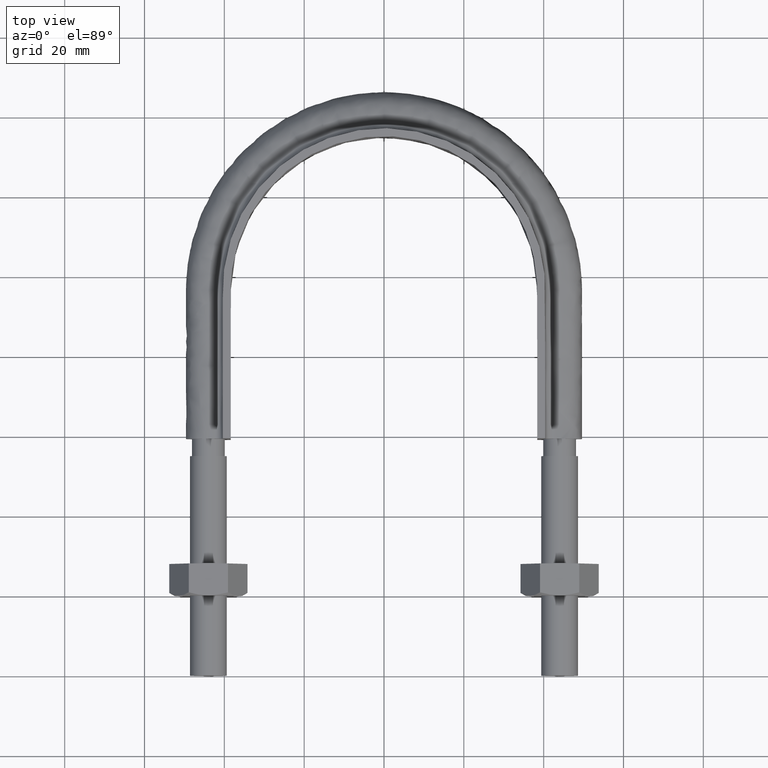
[diagram: clean part render]
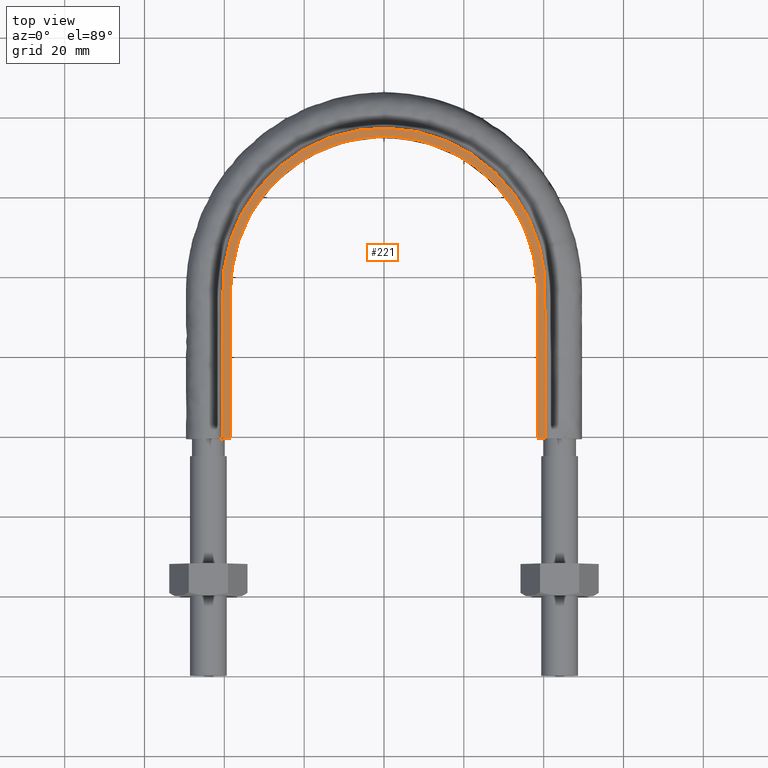
[diagram: same view with one face highlighted and labeled with its STEP entity id]
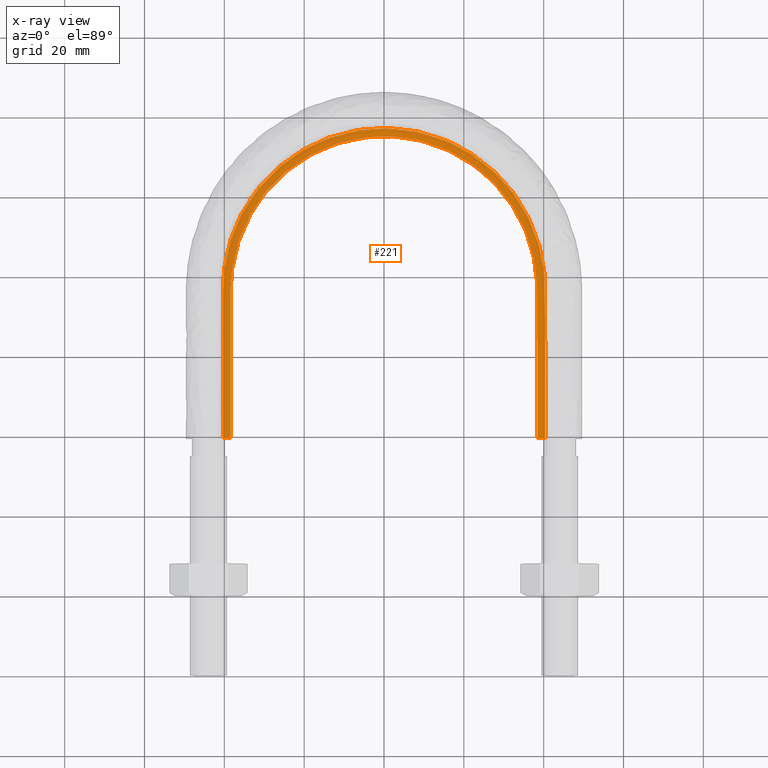
[diagram: x-ray of the same camera — body ghosted, the highlighted face saturated]
A machine part, top view. The second image highlights one B-rep face of the part: STEP entity #221.
The next image is the same camera in x-ray: the body ghosted, the highlighted face saturated — about 0% of this face is hidden behind the body in this view.
In plain terms, the highlighted planar face has unit normal (0, 0, 1).
Its self-contained STEP definition (entity closure, byte-faithful):
#221 = ADVANCED_FACE( '', ( #299 ), #300, .T. );
#299 = FACE_OUTER_BOUND( '', #467, .T. );
#300 = PLANE( '', #468 );
#467 = EDGE_LOOP( '', ( #1334, #1335, #1336, #1337 ) );
#468 = AXIS2_PLACEMENT_3D( '', #1338, #1339, #1340 );
#1334 = ORIENTED_EDGE( '', *, *, #1840, .T. );
#1335 = ORIENTED_EDGE( '', *, *, #1845, .F. );
#1336 = ORIENTED_EDGE( '', *, *, #1846, .T. );
#1337 = ORIENTED_EDGE( '', *, *, #1847, .F. );
#1338 = CARTESIAN_POINT( '', ( 55.0000000000000, 159.300000000000, 12.5000000000000 ) );
#1339 = DIRECTION( '', ( 0.000000000000000, 0.000000000000000, 1.00000000000000 ) );
#1340 = DIRECTION( '', ( 1.00000000000000, 0.000000000000000, 0.000000000000000 ) );
#1840 = EDGE_CURVE( '', #1992, #1989, #1993, .F. );
#1845 = EDGE_CURVE( '', #1999, #1989, #2001, .T. );
#1846 = EDGE_CURVE( '', #1999, #2002, #2003, .F. );
#1847 = EDGE_CURVE( '', #1992, #2002, #2004, .T. );
#1989 = VERTEX_POINT( '', #2235 );
#1992 = VERTEX_POINT( '', #2239 );
#1993 = LINE( '', #2240, #2241 );
#1999 = VERTEX_POINT( '', #2294 );
#2001 = B_SPLINE_CURVE_WITH_KNOTS( '', 3, ( #2297, #2298, #2299, #2300, #2301, #2302, #2303, #2304, #2305, #2306, #2307, #2308, #2309, #2310, #2311, #2312, #2313, #2314, #2315, #2316, #2317, #2318, #2319, #2320, #2321, #2322, #2323, #2324, #2325, #2326, #2327, #2328, #2329, #2330, #2331, #2332, #2333, #2334, #2335, #2336, #2337, #2338, #2339, #2340, #2341, #2342, #2343, #2344, #2345, #2346, #2347, #2348, #2349, #2350, #2351, #2352, #2353, #2354, #2355, #2356, #2357, #2358, #2359, #2360, #2361, #2362, #2363, #2364, #2365, #2366, #2367, #2368, #2369, #2370, #2371, #2372, #2373, #2374, #2375, #2376, #2377, #2378, #2379, #2380, #2381, #2382 ), .UNSPECIFIED., .F., .F., ( 4, 1, 2, 2, 2, 2, 2, 2, 2, 2, 2, 2, 2, 2, 2, 2, 2, 2, 2, 2, 2, 2, 2, 2, 2, 2, 2, 2, 2, 2, 2, 2, 2, 2, 2, 2, 2, 2, 2, 2, 2, 2, 1, 4 ), ( 6.93889390390723E-018, 0.0243379018108107, 0.0365068527162160, 0.0380279715793916, 0.0395490904425673, 0.0425913281689186, 0.0456335658952699, 0.0486758036216212, 0.0547602790743238, 0.0578025168006751, 0.0593236356638507, 0.0608447545270264, 0.0669292299797289, 0.0699714677060801, 0.0714925865692557, 0.0730137054324314, 0.0790981808851338, 0.0851826563378363, 0.0867037752010119, 0.0882248940641875, 0.0912671317905387, 0.0973516072432411, 0.0988727261064167, 0.100393844969592, 0.103436082695944, 0.109520558148646, 0.112562795874997, 0.115605033601348, 0.121689509054051, 0.123210627917226, 0.124731746780402, 0.127773984506753, 0.133858459959456, 0.136900697685807, 0.139942935412158, 0.146027410864861, 0.149069648591212, 0.150590767454388, 0.152111886317563, 0.155154124043915, 0.156675242907090, 0.158196361770266, 0.170365312675671, 0.194703214486480 ), .UNSPECIFIED. );
#2002 = VERTEX_POINT( '', #2383 );
#2003 = LINE( '', #2384, #2385 );
#2004 = B_SPLINE_CURVE_WITH_KNOTS( '', 3, ( #2386, #2387, #2388, #2389, #2390, #2391, #2392, #2393, #2394, #2395, #2396, #2397, #2398, #2399, #2400, #2401, #2402 ), .UNSPECIFIED., .F., .F., ( 4, 3, 1, 1, 1, 1, 1, 1, 1, 3, 4 ), ( 0.0698254364089772, 1.00000000000000, 1.50000000000000, 2.00000000000000, 3.00000000000000, 4.00000000000000, 5.00000000000000, 6.00000000000000, 6.50000000000000, 7.00000000000000, 7.93017456359102 ), .UNSPECIFIED. );
#2235 = CARTESIAN_POINT( '', ( -38.4000000000000, 59.3000000000000, 12.5000000000000 ) );
#2239 = CARTESIAN_POINT( '', ( -40.4000000000000, 59.3000000000000, 12.5000000000000 ) );
#2240 = CARTESIAN_POINT( '', ( 55.0000000000000, 59.3000000000000, 12.5000000000000 ) );
#2241 = VECTOR( '', #2879, 1000.00000000000 );
#2294 = CARTESIAN_POINT( '', ( 38.4000000000000, 59.3000000000000, 12.5000000000000 ) );
#2297 = CARTESIAN_POINT( '', ( 38.4000000000000, 59.3000000000000, 12.5000000000000 ) );
#2298 = CARTESIAN_POINT( '', ( 38.4000000000000, 67.4126339369367, 12.5000000000000 ) );
#2299 = CARTESIAN_POINT( '', ( 38.4000000000000, 79.5815848423417, 12.5000000000000 ) );
#2300 = CARTESIAN_POINT( '', ( 38.4000000000000, 91.7505357477467, 12.5000000000000 ) );
#2301 = CARTESIAN_POINT( '', ( 38.4000000000000, 96.3138923372736, 12.5000000000000 ) );
#2302 = CARTESIAN_POINT( '', ( 38.4027743076037, 96.8211194098902, 12.5000000000000 ) );
#2303 = CARTESIAN_POINT( '', ( 38.3830167791574, 97.8338636956790, 12.5000000000000 ) );
#2304 = CARTESIAN_POINT( '', ( 38.3628782069929, 98.3395426144399, 12.5000000000000 ) );
#2305 = CARTESIAN_POINT( '', ( 38.2722040230530, 99.8545348977656, 12.5000000000000 ) );
#2306 = CARTESIAN_POINT( '', ( 38.1714849409613, 100.861808856702, 12.5000000000000 ) );
#2307 = CARTESIAN_POINT( '', ( 37.8904277266655, 102.870977156620, 12.5000000000000 ) );
#2308 = CARTESIAN_POINT( '', ( 37.7100929165158, 103.872871722062, 12.5000000000000 ) );
#2309 = CARTESIAN_POINT( '', ( 37.2682777085644, 105.871178091473, 12.5000000000000 ) );
#2310 = CARTESIAN_POINT( '', ( 37.0058649207665, 106.869209598004, 12.5000000000000 ) );
#2311 = CARTESIAN_POINT( '', ( 36.1099085355124, 109.800428328994, 12.5000000000000 ) );
#2312 = CARTESIAN_POINT( '', ( 35.3652812283339, 111.689277860510, 12.5000000000000 ) );
#2313 = CARTESIAN_POINT( '', ( 34.0270721353676, 114.424482046523, 12.5000000000000 ) );
#2314 = CARTESIAN_POINT( '', ( 33.5438803306412, 115.319763573667, 12.5000000000000 ) );
#2315 = CARTESIAN_POINT( '', ( 32.7614856080269, 116.637153374160, 12.5000000000000 ) );
#2316 = CARTESIAN_POINT( '', ( 32.4911122498970, 117.072039439345, 12.5000000000000 ) );
#2317 = CARTESIAN_POINT( '', ( 31.9310694523163, 117.933259191099, 12.5000000000000 ) );
#2318 = CARTESIAN_POINT( '', ( 31.6416548483074, 118.359099832881, 12.5000000000000 ) );
#2319 = CARTESIAN_POINT( '', ( 30.1598500561493, 120.447972709778, 12.5000000000000 ) );
#2320 = CARTESIAN_POINT( '', ( 28.8544690281685, 122.006253780205, 12.5000000000000 ) );
#2321 = CARTESIAN_POINT( '', ( 26.7242269234556, 124.181725572989, 12.5000000000000 ) );
#2322 = CARTESIAN_POINT( '', ( 25.9852601970117, 124.879711605143, 12.5000000000000 ) );
#2323 = CARTESIAN_POINT( '', ( 24.8327554866621, 125.885251295440, 12.5000000000000 ) );
#2324 = CARTESIAN_POINT( '', ( 24.4412331318477, 126.213513644747, 12.5000000000000 ) );
#2325 = CARTESIAN_POINT( '', ( 23.6432116170531, 126.855950622700, 12.5000000000000 ) );
#2326 = CARTESIAN_POINT( '', ( 23.2357844532914, 127.170799679600, 12.5000000000000 ) );
#2327 = CARTESIAN_POINT( '', ( 21.1728995967701, 128.699717522121, 12.5000000000000 ) );
#2328 = CARTESIAN_POINT( '', ( 19.4461214786924, 129.775116348712, 12.5000000000000 ) );
#2329 = CARTESIAN_POINT( '', ( 15.8424012951628, 131.635807157406, 12.5000000000000 ) );
#2330 = CARTESIAN_POINT( '', ( 13.9663663217125, 132.422851581443, 12.5000000000000 ) );
#2331 = CARTESIAN_POINT( '', ( 11.5271708169513, 133.224762065559, 12.5000000000000 ) );
#2332 = CARTESIAN_POINT( '', ( 11.0351210878859, 133.375746188077, 12.5000000000000 ) );
#2333 = CARTESIAN_POINT( '', ( 10.0502423640909, 133.656786422983, 12.5000000000000 ) );
#2334 = CARTESIAN_POINT( '', ( 9.55637016529635, 133.787194835959, 12.5000000000000 ) );
#2335 = CARTESIAN_POINT( '', ( 8.07051418322873, 134.148502213832, 12.5000000000000 ) );
#2336 = CARTESIAN_POINT( '', ( 7.07429985999588, 134.349545743025, 12.5000000000000 ) );
#2337 = CARTESIAN_POINT( '', ( 4.06886690428292, 134.834187354575, 12.5000000000000 ) );
#2338 = CARTESIAN_POINT( '', ( 2.04300780873486, 135.000351662540, 12.5000000000000 ) );
#2339 = CARTESIAN_POINT( '', ( -0.518810472446091, 134.999911391897, 12.5000000000000 ) );
#2340 = CARTESIAN_POINT( '', ( -1.03384934041121, 134.989267949139, 12.5000000000000 ) );
#2341 = CARTESIAN_POINT( '', ( -2.05999227101022, 134.947123645522, 12.5000000000000 ) );
#2342 = CARTESIAN_POINT( '', ( -2.57100025916361, 134.915690794062, 12.5000000000000 ) );
#2343 = CARTESIAN_POINT( '', ( -4.09798525337116, 134.791070625937, 12.5000000000000 ) );
#2344 = CARTESIAN_POINT( '', ( -5.10793619044561, 134.667626472700, 12.5000000000000 ) );
#2345 = CARTESIAN_POINT( '', ( -8.11438462156133, 134.179780837089, 12.5000000000000 ) );
#2346 = CARTESIAN_POINT( '', ( -10.0876738344829, 133.698850790019, 12.5000000000000 ) );
#2347 = CARTESIAN_POINT( '', ( -13.0003199951630, 132.740024822744, 12.5000000000000 ) );
#2348 = CARTESIAN_POINT( '', ( -13.9672170977487, 132.378727202231, 12.5000000000000 ) );
#2349 = CARTESIAN_POINT( '', ( -15.8546719802245, 131.585984907772, 12.5000000000000 ) );
#2350 = CARTESIAN_POINT( '', ( -16.7774313079128, 131.154197465975, 12.5000000000000 ) );
#2351 = CARTESIAN_POINT( '', ( -19.4833402127082, 129.753490344414, 12.5000000000000 ) );
#2352 = CARTESIAN_POINT( '', ( -21.2036319794209, 128.678400373100, 12.5000000000000 ) );
#2353 = CARTESIAN_POINT( '', ( -23.2504143165322, 127.159581599005, 12.5000000000000 ) );
#2354 = CARTESIAN_POINT( '', ( -23.6545765017689, 126.847044416500, 12.5000000000000 ) );
#2355 = CARTESIAN_POINT( '', ( -24.4524162332018, 126.204260920726, 12.5000000000000 ) );
#2356 = CARTESIAN_POINT( '', ( -24.8469576925089, 125.873240647292, 12.5000000000000 ) );
#2357 = CARTESIAN_POINT( '', ( -26.0068899055368, 124.860053871450, 12.5000000000000 ) );
#2358 = CARTESIAN_POINT( '', ( -26.7486892538445, 124.158088969384, 12.5000000000000 ) );
#2359 = CARTESIAN_POINT( '', ( -28.8823748109422, 121.974991317251, 12.5000000000000 ) );
#2360 = CARTESIAN_POINT( '', ( -30.1833131714200, 120.417299289572, 12.5000000000000 ) );
#2361 = CARTESIAN_POINT( '', ( -31.9490860628640, 117.924495268019, 12.5000000000000 ) );
#2362 = CARTESIAN_POINT( '', ( -32.5065492449488, 117.067357440084, 12.5000000000000 ) );
#2363 = CARTESIAN_POINT( '', ( -33.5561706257855, 115.298108495221, 12.5000000000000 ) );
#2364 = CARTESIAN_POINT( '', ( -34.0419906193419, 114.396127879279, 12.5000000000000 ) );
#2365 = CARTESIAN_POINT( '', ( -35.3824842141312, 111.649725427965, 12.5000000000000 ) );
#2366 = CARTESIAN_POINT( '', ( -36.1236281599900, 109.761104672605, 12.5000000000000 ) );
#2367 = CARTESIAN_POINT( '', ( -37.0127103209049, 106.843968621002, 12.5000000000000 ) );
#2368 = CARTESIAN_POINT( '', ( -37.2717329928219, 105.857467876968, 12.5000000000000 ) );
#2369 = CARTESIAN_POINT( '', ( -37.6030425852181, 104.356073245167, 12.5000000000000 ) );
#2370 = CARTESIAN_POINT( '', ( -37.7041051856697, 103.850877289074, 12.5000000000000 ) );
#2371 = CARTESIAN_POINT( '', ( -37.8853786337735, 102.841026729264, 12.5000000000000 ) );
#2372 = CARTESIAN_POINT( '', ( -37.9657364586178, 102.335935616760, 12.5000000000000 ) );
#2373 = CARTESIAN_POINT( '', ( -38.1763323138402, 100.820170574568, 12.5000000000000 ) );
#2374 = CARTESIAN_POINT( '', ( -38.2761686057870, 99.8090061644105, 12.5000000000000 ) );
#2375 = CARTESIAN_POINT( '', ( -38.3651025185759, 98.2912783131886, 12.5000000000000 ) );
#2376 = CARTESIAN_POINT( '', ( -38.3845912942189, 97.7852051818457, 12.5000000000000 ) );
#2377 = CARTESIAN_POINT( '', ( -38.4030301939459, 96.7727275628628, 12.5000000000000 ) );
#2378 = CARTESIAN_POINT( '', ( -38.4000000000000, 96.2662911261513, 12.5000000000000 ) );
#2379 = CARTESIAN_POINT( '', ( -38.4000000000000, 91.7088031790915, 12.5000000000000 ) );
#2380 = CARTESIAN_POINT( '', ( -38.4000000000000, 79.5555019869322, 12.5000000000000 ) );
#2381 = CARTESIAN_POINT( '', ( -38.4000000000000, 67.4022007947729, 12.5000000000000 ) );
#2382 = CARTESIAN_POINT( '', ( -38.4000000000000, 59.3000000000000, 12.5000000000000 ) );
#2383 = CARTESIAN_POINT( '', ( 40.4000000000000, 59.3000000000000, 12.5000000000000 ) );
#2384 = CARTESIAN_POINT( '', ( 55.0000000000000, 59.3000000000000, 12.5000000000000 ) );
#2385 = VECTOR( '', #2882, 1000.00000000000 );
#2386 = CARTESIAN_POINT( '', ( -40.4000000000000, 59.3000000000000, 12.5000000000000 ) );
#2387 = CARTESIAN_POINT( '', ( -40.4000000000000, 71.7333333333334, 12.5000000000000 ) );
#2388 = CARTESIAN_POINT( '', ( -40.4000000000000, 84.1666666666666, 12.5000000000000 ) );
#2389 = CARTESIAN_POINT( '', ( -40.4000000000000, 96.6000000000000, 12.5000000000000 ) );
#2390 = CARTESIAN_POINT( '', ( -40.4000000000000, 100.116528833197, 12.5000000000000 ) );
#2391 = CARTESIAN_POINT( '', ( -39.4544182095027, 107.175179019489, 12.5000000000000 ) );
#2392 = CARTESIAN_POINT( '', ( -34.0439198137652, 120.322280291266, 12.5000000000000 ) );
#2393 = CARTESIAN_POINT( '', ( -21.1440253219688, 133.223582281160, 12.5000000000000 ) );
#2394 = CARTESIAN_POINT( '', ( 3.17534878498284E-014, 138.888208859420, 12.5000000000000 ) );
#2395 = CARTESIAN_POINT( '', ( 21.1440253219689, 133.223582281160, 12.5000000000000 ) );
#2396 = CARTESIAN_POINT( '', ( 34.0439198137653, 120.322280291266, 12.5000000000000 ) );
#2397 = CARTESIAN_POINT( '', ( 39.4544182095027, 107.175179019489, 12.5000000000000 ) );
#2398 = CARTESIAN_POINT( '', ( 40.4000000000000, 100.116528833197, 12.5000000000000 ) );
#2399 = CARTESIAN_POINT( '', ( 40.4000000000000, 96.6000000000000, 12.5000000000000 ) );
#2400 = CARTESIAN_POINT( '', ( 40.4000000000000, 84.1666666666666, 12.5000000000000 ) );
#2401 = CARTESIAN_POINT( '', ( 40.4000000000000, 71.7333333333334, 12.5000000000000 ) );
#2402 = CARTESIAN_POINT( '', ( 40.4000000000000, 59.3000000000000, 12.5000000000000 ) );
#2879 = DIRECTION( '', ( -1.00000000000000, 1.83649404852125E-048, 0.000000000000000 ) );
#2882 = DIRECTION( '', ( -1.00000000000000, 1.83649404852125E-048, 0.000000000000000 ) );